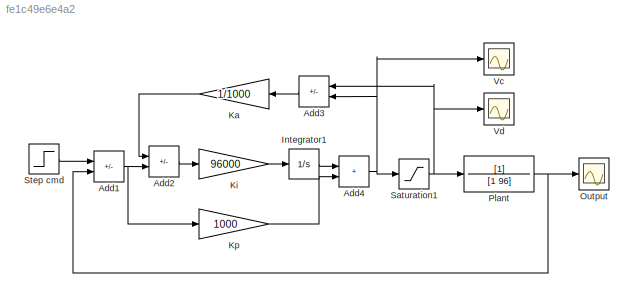
MODEL slx_fe1c49e6e4a2
KIND model
CONFIG AbsTol = auto
CONFIG EnableMultiTasking = off
CONFIG FixedStep = 0.001
CONFIG MaxStep = auto
CONFIG MinStep = auto
CONFIG RelTol = 1e-3
CONFIG SampleTimeConstraint = Unconstrained
CONFIG SolverName = VariableStepAuto
CONFIG StartTime = 0.0
CONFIG StopTime = 0.4
BLOCK [Sum] Add1
  IconShape = rectangular
  Inputs = +-
BLOCK [Sum] Add2
  IconShape = rectangular
  Inputs = -+
BLOCK [Sum] Add3
  IconShape = rectangular
  Inputs = -+
  NameLocation = top
BLOCK [Sum] Add4
  IconShape = rectangular
BLOCK [Integrator] Integrator1
BLOCK [Gain] Ka
  Gain = 1/1000
BLOCK [Gain] Ki
  Gain = 96000
BLOCK [Gain] Kp
  Gain = 1000
BLOCK [Scope] Output
  Floating = off
  NumInputPorts = 1
  ScopeSpecificationString = Simulink.scopes.TimeScopeBlockCfg('CurrentConfiguration', extmgr.ConfigurationSet(extmgr.Configuration('Core','General UI',true,'FigureColor',[1 1 1]),extmgr.Configuration('Core','Source UI',true),extmgr.Configuration('Sources','WiredSimulink',true,'DataLoggingVariableName','ScopeData1'),extmgr.Configuration('Visuals','Time Domain',true,'SerializedDisplays',{struct('MinYLimReal','-0.0651','MaxYLim...<+1555ch>
BLOCK [TransferFcn] Plant
  Denominator = [1 96]
BLOCK [Saturate] Saturation1
  LowerLimit = -50
  UpperLimit = 50
BLOCK [Step] Step cmd
  SampleTime = 0
  Time = 0.1
BLOCK [Scope] Vc
  Floating = off
  NumInputPorts = 1
  ScopeSpecificationString = Simulink.scopes.TimeScopeBlockCfg('CurrentConfiguration', extmgr.ConfigurationSet(extmgr.Configuration('Core','General UI',true,'FigureColor',[1 1 1]),extmgr.Configuration('Core','Source UI',true),extmgr.Configuration('Sources','WiredSimulink',true,'DataLoggingVariableName','ScopeData1'),extmgr.Configuration('Visuals','Time Domain',true,'SerializedDisplays',{struct('MinYLimReal','484.08419','MaxYL...<+1570ch>
BLOCK [Scope] Vd
  Floating = off
  NumInputPorts = 1
  ScopeSpecificationString = Simulink.scopes.TimeScopeBlockCfg('CurrentConfiguration', extmgr.ConfigurationSet(extmgr.Configuration('Core','General UI',true,'FigureColor',[1 1 1]),extmgr.Configuration('Core','Source UI',true),extmgr.Configuration('Sources','WiredSimulink',true,'DataLoggingVariableName','ScopeData2'),extmgr.Configuration('Visuals','Time Domain',true,'SerializedDisplays',{struct('MinYLimReal','-6.25','MaxYLimRe...<+1549ch>
NET Add1:1 -> Add2:2, Kp:1
LINE Add2:1 -> Ki:1
LINE Add3:1 -> Ka:1
NET Add4:1 -> Add3:2, Saturation1:1, Vc:1
LINE Integrator1:1 -> Add4:1
LINE Ka:1 -> Add2:1
LINE Ki:1 -> Integrator1:1
LINE Kp:1 -> Add4:2
NET Plant:1 -> Add1:2, Output:1
NET Saturation1:1 -> Add3:1, Plant:1, Vd:1
LINE Step cmd:1 -> Add1:1
note: NET lines group one-source signal fan-out (src -> all destinations, sorted); 1:1 wires keep LINE
